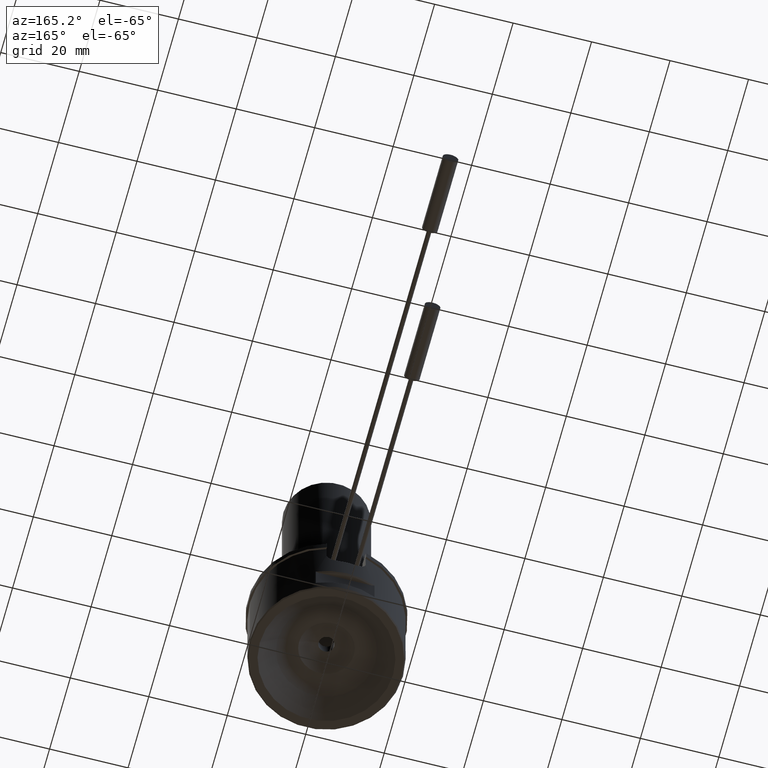
[diagram: clean part render]
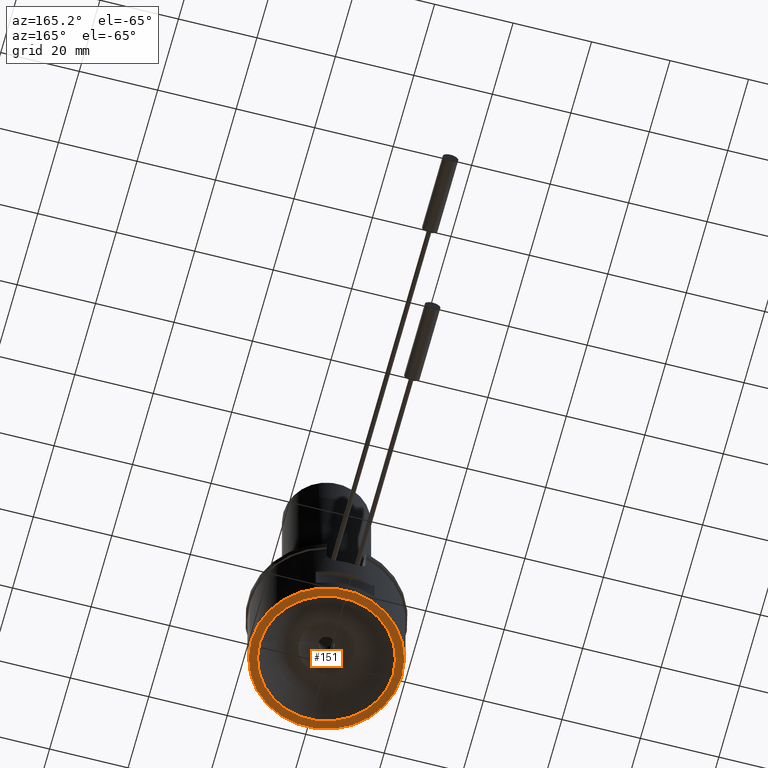
[diagram: same view with one face highlighted and labeled with its STEP entity id]
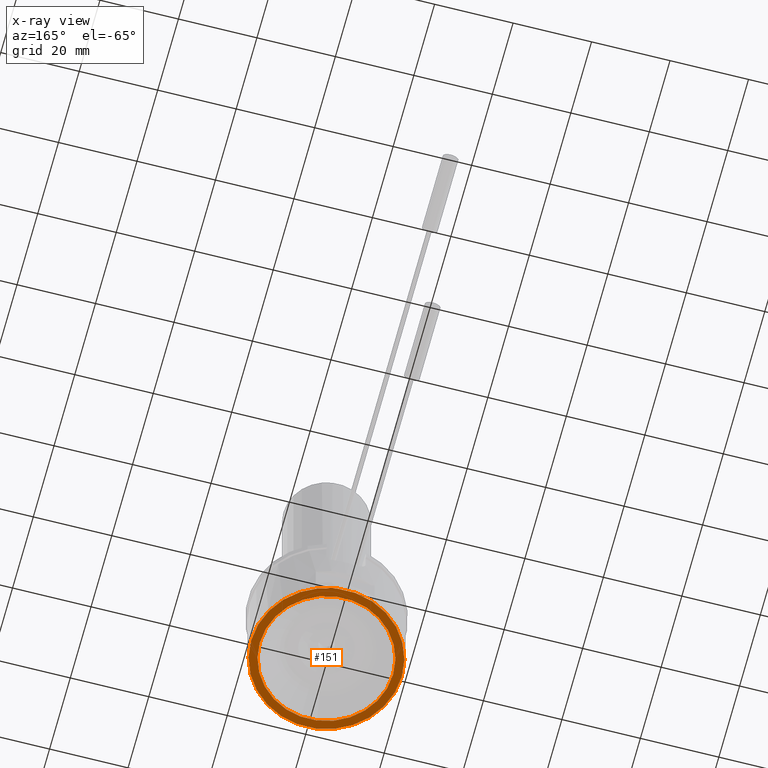
[diagram: x-ray of the same camera — body ghosted, the highlighted face saturated]
A machine part, auxiliary view. The second image highlights one B-rep face of the part: STEP entity #151.
The next image is the same camera in x-ray: the body ghosted, the highlighted face saturated — about 0% of this face is hidden behind the body in this view.
In plain terms, the highlighted planar face has unit normal (0, 0, 1).
Its self-contained STEP definition (entity closure, byte-faithful):
#151=ADVANCED_FACE('',(#334,#335),#197,.F.);
#197=PLANE('',#1016);
#334=FACE_BOUND('',#405,.T.);
#335=FACE_BOUND('',#406,.T.);
#405=EDGE_LOOP('',(#556));
#406=EDGE_LOOP('',(#557));
#556=ORIENTED_EDGE('',*,*,#855,.T.);
#557=ORIENTED_EDGE('',*,*,#844,.T.);
#743=VERTEX_POINT('',#1652);
#752=VERTEX_POINT('',#1688);
#844=EDGE_CURVE('',#743,#743,#930,.T.);
#855=EDGE_CURVE('',#752,#752,#933,.T.);
#930=CIRCLE('',#1008,17.);
#933=CIRCLE('',#1015,19.2);
#1008=AXIS2_PLACEMENT_3D('',#1651,#1206,#1207);
#1015=AXIS2_PLACEMENT_3D('',#1687,#1224,#1225);
#1016=AXIS2_PLACEMENT_3D('',#1689,#1226,#1227);
#1206=DIRECTION('',(0.,0.,1.));
#1207=DIRECTION('',(1.,0.,0.));
#1224=DIRECTION('',(0.,0.,-1.));
#1225=DIRECTION('',(1.,0.,0.));
#1226=DIRECTION('',(0.,0.,1.));
#1227=DIRECTION('',(1.,0.,0.));
#1651=CARTESIAN_POINT('',(0.,0.,-1.73472347597681E-15));
#1652=CARTESIAN_POINT('',(17.,0.,-1.73472347597681E-15));
#1687=CARTESIAN_POINT('',(0.,0.,-9.85377022124488E-15));
#1688=CARTESIAN_POINT('',(19.2,0.,-9.85377022124488E-15));
#1689=CARTESIAN_POINT('',(0.,0.,-9.85377022124488E-15));